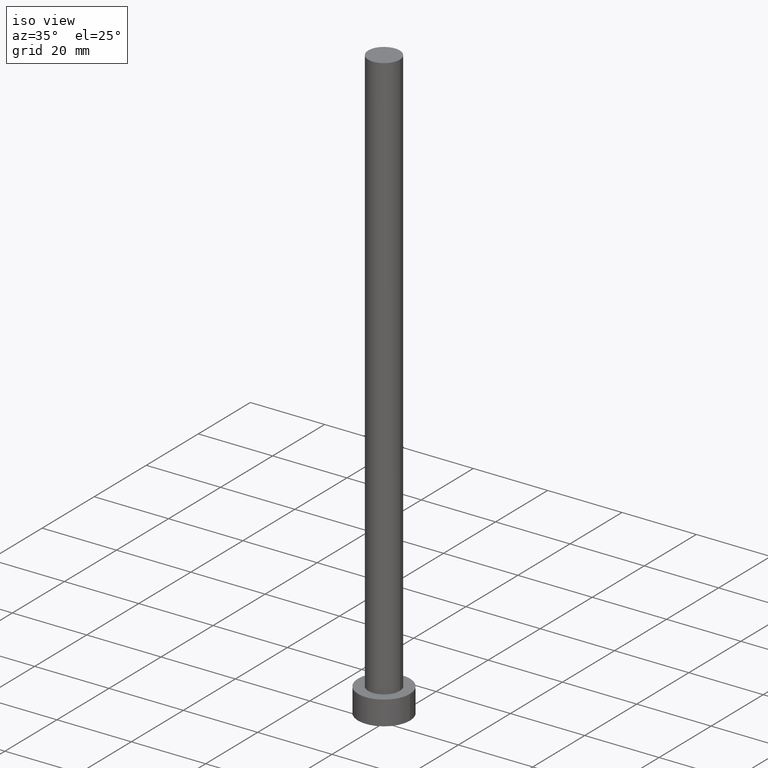
[diagram: clean part render]
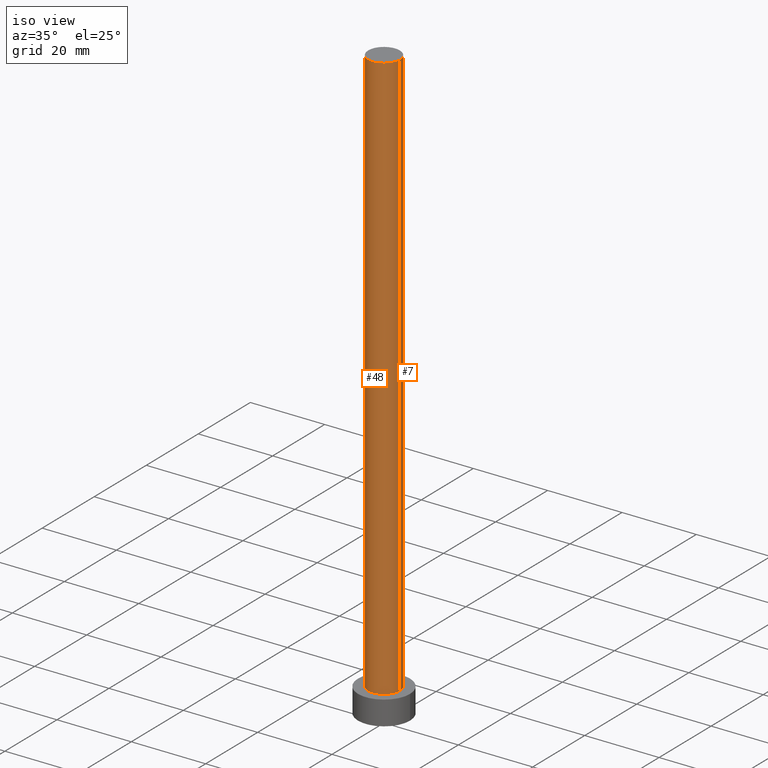
[diagram: same view with one multi-face feature highlighted, each face labeled with its STEP entity id]
A machine part, iso view. The highlighted faces form ONE feature: a constant-radius fillet chain: 2 tangent blend faces with common blend radius 4.25 mm. The faces share edges in the B-rep.
Their STEP definitions:
[1] entity #48 (Cylinder):
#6 = VERTEX_POINT ( 'NONE', #244 ) ;
#14 = CARTESIAN_POINT ( 'NONE',  ( 0.000000000000000000, 0.000000000000000000, 6.500000000000000000 ) ) ;
#16 = VECTOR ( 'NONE', #151, 1000.000000000000000 ) ;
#17 = DIRECTION ( 'NONE',  ( 0.000000000000000000, 0.000000000000000000, 1.000000000000000000 ) ) ;
#21 = CARTESIAN_POINT ( 'NONE',  ( -4.250000000000000000, 0.000000000000000000, 160.0000000000000000 ) ) ;
#23 = VERTEX_POINT ( 'NONE', #132 ) ;
#31 = LINE ( 'NONE', #72, #164 ) ;
#37 = DIRECTION ( 'NONE',  ( -1.000000000000000000, 0.000000000000000000, 0.000000000000000000 ) ) ;
#41 = LINE ( 'NONE', #21, #16 ) ;
#42 = ORIENTED_EDGE ( 'NONE', *, *, #91, .F. ) ;
#47 = VERTEX_POINT ( 'NONE', #67 ) ;
#48 = ADVANCED_FACE ( 'NONE', ( #89 ), #71, .T. ) ;
#55 = AXIS2_PLACEMENT_3D ( 'NONE', #14, #17, #176 ) ;
#67 = CARTESIAN_POINT ( 'NONE',  ( -4.250000000000000000, 0.000000000000000000, 160.0000000000000000 ) ) ;
#71 = CYLINDRICAL_SURFACE ( 'NONE', #145, 4.250000000000000000 ) ;
#72 = CARTESIAN_POINT ( 'NONE',  ( 4.250000000000000000, 5.204748896376250699E-16, 160.0000000000000000 ) ) ;
#89 = FACE_OUTER_BOUND ( 'NONE', #168, .T. ) ;
#91 = EDGE_CURVE ( 'NONE', #47, #23, #173, .T. ) ;
#93 = CARTESIAN_POINT ( 'NONE',  ( 0.000000000000000000, 0.000000000000000000, 160.0000000000000000 ) ) ;
#99 = DIRECTION ( 'NONE',  ( 0.000000000000000000, 0.000000000000000000, 1.000000000000000000 ) ) ;
#110 = DIRECTION ( 'NONE',  ( -0.000000000000000000, -0.000000000000000000, -1.000000000000000000 ) ) ;
#112 = EDGE_CURVE ( 'NONE', #222, #6, #139, .T. ) ;
#116 = CARTESIAN_POINT ( 'NONE',  ( -4.250000000000000000, 0.000000000000000000, 6.500000000000000000 ) ) ;
#132 = CARTESIAN_POINT ( 'NONE',  ( 4.250000000000000000, 5.204748896376250699E-16, 160.0000000000000000 ) ) ;
#135 = DIRECTION ( 'NONE',  ( -0.000000000000000000, -0.000000000000000000, -1.000000000000000000 ) ) ;
#139 = CIRCLE ( 'NONE', #55, 4.250000000000000000 ) ;
#145 = AXIS2_PLACEMENT_3D ( 'NONE', #158, #135, #37 ) ;
#147 = ORIENTED_EDGE ( 'NONE', *, *, #193, .F. ) ;
#151 = DIRECTION ( 'NONE',  ( -0.000000000000000000, -0.000000000000000000, -1.000000000000000000 ) ) ;
#158 = CARTESIAN_POINT ( 'NONE',  ( 0.000000000000000000, 0.000000000000000000, 160.0000000000000000 ) ) ;
#164 = VECTOR ( 'NONE', #110, 1000.000000000000000 ) ;
#168 = EDGE_LOOP ( 'NONE', ( #147, #42, #200, #199 ) ) ;
#173 = CIRCLE ( 'NONE', #240, 4.250000000000000000 ) ;
#176 = DIRECTION ( 'NONE',  ( 1.000000000000000000, 0.000000000000000000, 0.000000000000000000 ) ) ;
#179 = EDGE_CURVE ( 'NONE', #47, #222, #41, .T. ) ;
#193 = EDGE_CURVE ( 'NONE', #23, #6, #31, .T. ) ;
#196 = DIRECTION ( 'NONE',  ( 1.000000000000000000, 0.000000000000000000, 0.000000000000000000 ) ) ;
#199 = ORIENTED_EDGE ( 'NONE', *, *, #112, .T. ) ;
#200 = ORIENTED_EDGE ( 'NONE', *, *, #179, .T. ) ;
#222 = VERTEX_POINT ( 'NONE', #116 ) ;
#240 = AXIS2_PLACEMENT_3D ( 'NONE', #93, #99, #196 ) ;
#244 = CARTESIAN_POINT ( 'NONE',  ( 4.250000000000000000, 5.204748896376250699E-16, 6.500000000000000000 ) ) ;
[2] entity #7 (Cylinder):
#1 = DIRECTION ( 'NONE',  ( 0.000000000000000000, 0.000000000000000000, 1.000000000000000000 ) ) ;
#4 = ORIENTED_EDGE ( 'NONE', *, *, #179, .F. ) ;
#6 = VERTEX_POINT ( 'NONE', #244 ) ;
#7 = ADVANCED_FACE ( 'NONE', ( #65 ), #26, .T. ) ;
#8 = CIRCLE ( 'NONE', #207, 4.250000000000000000 ) ;
#16 = VECTOR ( 'NONE', #151, 1000.000000000000000 ) ;
#21 = CARTESIAN_POINT ( 'NONE',  ( -4.250000000000000000, 0.000000000000000000, 160.0000000000000000 ) ) ;
#22 = AXIS2_PLACEMENT_3D ( 'NONE', #237, #144, #62 ) ;
#23 = VERTEX_POINT ( 'NONE', #132 ) ;
#26 = CYLINDRICAL_SURFACE ( 'NONE', #252, 4.250000000000000000 ) ;
#31 = LINE ( 'NONE', #72, #164 ) ;
#41 = LINE ( 'NONE', #21, #16 ) ;
#47 = VERTEX_POINT ( 'NONE', #67 ) ;
#62 = DIRECTION ( 'NONE',  ( 1.000000000000000000, 0.000000000000000000, 0.000000000000000000 ) ) ;
#65 = FACE_OUTER_BOUND ( 'NONE', #104, .T. ) ;
#67 = CARTESIAN_POINT ( 'NONE',  ( -4.250000000000000000, 0.000000000000000000, 160.0000000000000000 ) ) ;
#72 = CARTESIAN_POINT ( 'NONE',  ( 4.250000000000000000, 5.204748896376250699E-16, 160.0000000000000000 ) ) ;
#82 = ORIENTED_EDGE ( 'NONE', *, *, #161, .F. ) ;
#94 = CIRCLE ( 'NONE', #22, 4.250000000000000000 ) ;
#104 = EDGE_LOOP ( 'NONE', ( #82, #219, #202, #4 ) ) ;
#110 = DIRECTION ( 'NONE',  ( -0.000000000000000000, -0.000000000000000000, -1.000000000000000000 ) ) ;
#116 = CARTESIAN_POINT ( 'NONE',  ( -4.250000000000000000, 0.000000000000000000, 6.500000000000000000 ) ) ;
#124 = DIRECTION ( 'NONE',  ( 1.000000000000000000, 0.000000000000000000, 0.000000000000000000 ) ) ;
#132 = CARTESIAN_POINT ( 'NONE',  ( 4.250000000000000000, 5.204748896376250699E-16, 160.0000000000000000 ) ) ;
#144 = DIRECTION ( 'NONE',  ( 0.000000000000000000, 0.000000000000000000, 1.000000000000000000 ) ) ;
#151 = DIRECTION ( 'NONE',  ( -0.000000000000000000, -0.000000000000000000, -1.000000000000000000 ) ) ;
#155 = DIRECTION ( 'NONE',  ( -1.000000000000000000, 0.000000000000000000, 0.000000000000000000 ) ) ;
#161 = EDGE_CURVE ( 'NONE', #23, #47, #8, .T. ) ;
#164 = VECTOR ( 'NONE', #110, 1000.000000000000000 ) ;
#171 = CARTESIAN_POINT ( 'NONE',  ( 0.000000000000000000, 0.000000000000000000, 160.0000000000000000 ) ) ;
#174 = EDGE_CURVE ( 'NONE', #6, #222, #94, .T. ) ;
#179 = EDGE_CURVE ( 'NONE', #47, #222, #41, .T. ) ;
#193 = EDGE_CURVE ( 'NONE', #23, #6, #31, .T. ) ;
#198 = CARTESIAN_POINT ( 'NONE',  ( 0.000000000000000000, 0.000000000000000000, 160.0000000000000000 ) ) ;
#202 = ORIENTED_EDGE ( 'NONE', *, *, #174, .T. ) ;
#207 = AXIS2_PLACEMENT_3D ( 'NONE', #198, #1, #124 ) ;
#219 = ORIENTED_EDGE ( 'NONE', *, *, #193, .T. ) ;
#222 = VERTEX_POINT ( 'NONE', #116 ) ;
#237 = CARTESIAN_POINT ( 'NONE',  ( 0.000000000000000000, 0.000000000000000000, 6.500000000000000000 ) ) ;
#244 = CARTESIAN_POINT ( 'NONE',  ( 4.250000000000000000, 5.204748896376250699E-16, 6.500000000000000000 ) ) ;
#246 = DIRECTION ( 'NONE',  ( -0.000000000000000000, -0.000000000000000000, -1.000000000000000000 ) ) ;
#252 = AXIS2_PLACEMENT_3D ( 'NONE', #171, #246, #155 ) ;